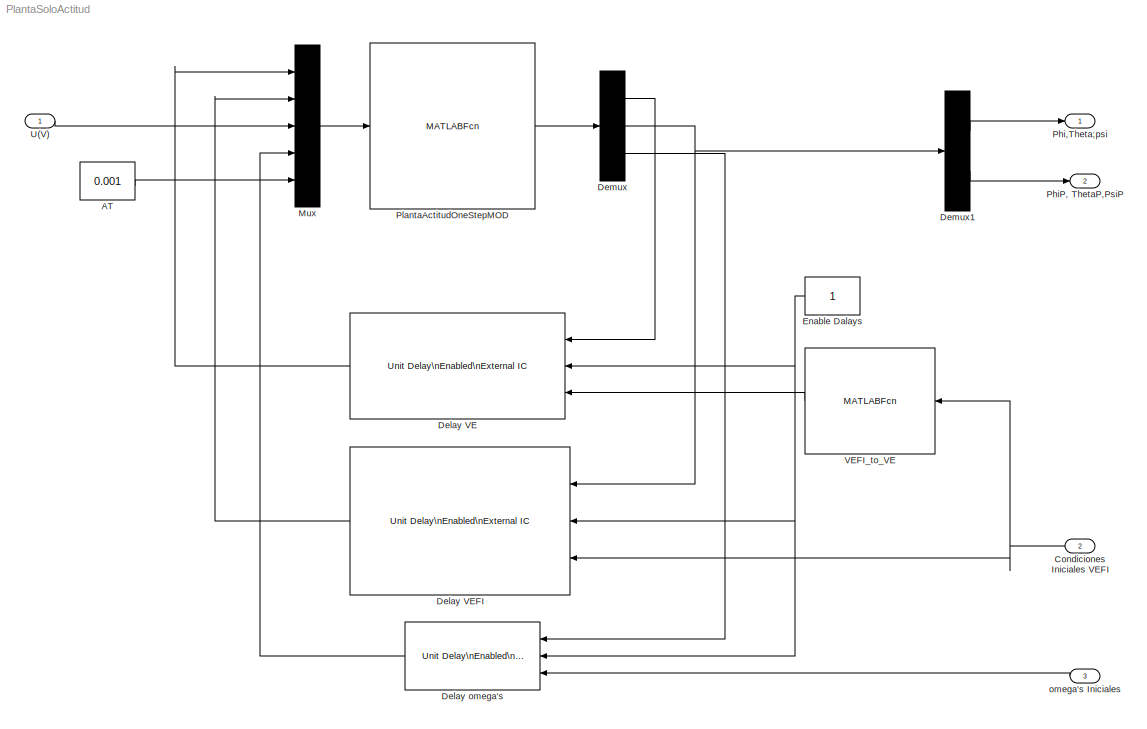
MODEL PlantaSoloActitud
KIND model
BLOCK [Constant] AT
  SID = 10
  SampleTime = -1
  Value = 0.001
BLOCK [Inport] Condiciones Iniciales VEFI
  IconDisplay = Port number
  Port = 2
  PortDimensions = [6 1]
  SID = 32
BLOCK [Reference] Delay VE  REF=simulink/Additional Math\n& Discrete/Additional\nDiscrete/Unit Delay\nEnabled\nExternal IC
  Ports = [3, 1]
  SID = 4
  SourceBlock = simulink/Additional Math\n& Discrete/Additional\nDiscrete/Unit Delay\nEnabled\nExternal IC
  SourceType = Unit Delay Enabled External Initial Condition
  tsamp = -1
BLOCK [Reference] Delay VEFI  REF=simulink/Additional Math\n& Discrete/Additional\nDiscrete/Unit Delay\nEnabled\nExternal IC
  Ports = [3, 1]
  SID = 5
  SourceBlock = simulink/Additional Math\n& Discrete/Additional\nDiscrete/Unit Delay\nEnabled\nExternal IC
  SourceType = Unit Delay Enabled External Initial Condition
  tsamp = -1
BLOCK [Reference] Delay omega's  REF=simulink/Additional Math\n& Discrete/Additional\nDiscrete/Unit Delay\nEnabled\nExternal IC
  Ports = [3, 1]
  SID = 8
  SourceBlock = simulink/Additional Math\n& Discrete/Additional\nDiscrete/Unit Delay\nEnabled\nExternal IC
  SourceType = Unit Delay Enabled External Initial Condition
  tsamp = -1
BLOCK [Demux] Demux
  DisplayOption = bar
  Outputs = [7 6 4]
  Ports = [1, 3]
  SID = 17
BLOCK [Demux] Demux1
  DisplayOption = bar
  Outputs = [3 3]
  Ports = [1, 2]
  SID = 22
BLOCK [Constant] Enable Dalays
  SID = 6
BLOCK [Mux] Mux
  DisplayOption = bar
  Inputs = 5
  Ports = [5, 1]
  SID = 7
BLOCK [Outport] Phi,Theta;psi
  IconDisplay = Port number
  SID = 28
BLOCK [Outport] PhiP, ThetaP,PsiP
  IconDisplay = Port number
  Port = 2
  SID = 30
BLOCK [MATLABFcn] PlantaActitudOneStepMOD
  MATLABFcn = PlantaActitudOneStepMOD( u(1:7),u(8:13), u(14:17), u(18:21),u(22)  )
  Output1D = off
  OutputDimensions = [17 1]
  Ports = [1, 1]
  SID = 27
  SampleTime = 0.001
BLOCK [Inport] U(V)
  IconDisplay = Port number
  PortDimensions = [4 1]
  SID = 29
BLOCK [MATLABFcn] VEFI_to_VE
  MATLABFcn = VEFI_to_VE( u(1:6) )
  Ports = [1, 1]
  SID = 26
  SampleTime = 0.001
BLOCK [Inport] omega's Iniciales
  IconDisplay = Port number
  Port = 3
  PortDimensions = [4 1]
  SID = 33
LINE AT:1 -> Mux:5
NET Condiciones Iniciales VEFI:1 -> Delay VEFI:3, VEFI_to_VE:1
LINE Delay VE:1 -> Mux:1
LINE Delay VEFI:1 -> Mux:2
LINE Delay omega's:1 -> Mux:4
LINE Demux1:1 -> Phi,Theta;psi:1
LINE Demux1:2 -> PhiP, ThetaP,PsiP:1
LINE Demux:1 -> Delay VE:1
NET Demux:2 -> Delay VEFI:1, Demux1:1
LINE Demux:3 -> Delay omega's:1
NET Enable Dalays:1 -> Delay VE:2, Delay VEFI:2, Delay omega's:2
LINE Mux:1 -> PlantaActitudOneStepMOD:1
LINE PlantaActitudOneStepMOD:1 -> Demux:1
LINE U(V):1 -> Mux:3
LINE VEFI_to_VE:1 -> Delay VE:3
LINE omega's Iniciales:1 -> Delay omega's:3
note: NET lines group one-source signal fan-out (src -> all destinations, sorted); 1:1 wires keep LINE
